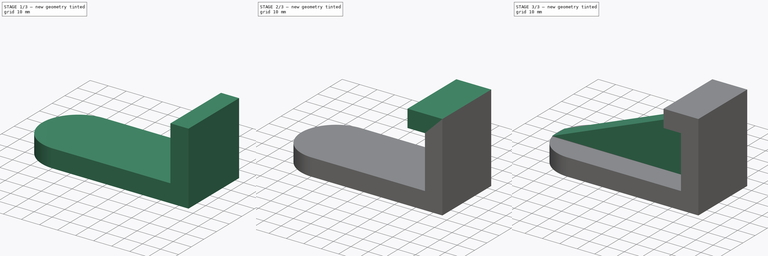
[diagram: build sequence overview — one tinted view per stage of 3, left to right]
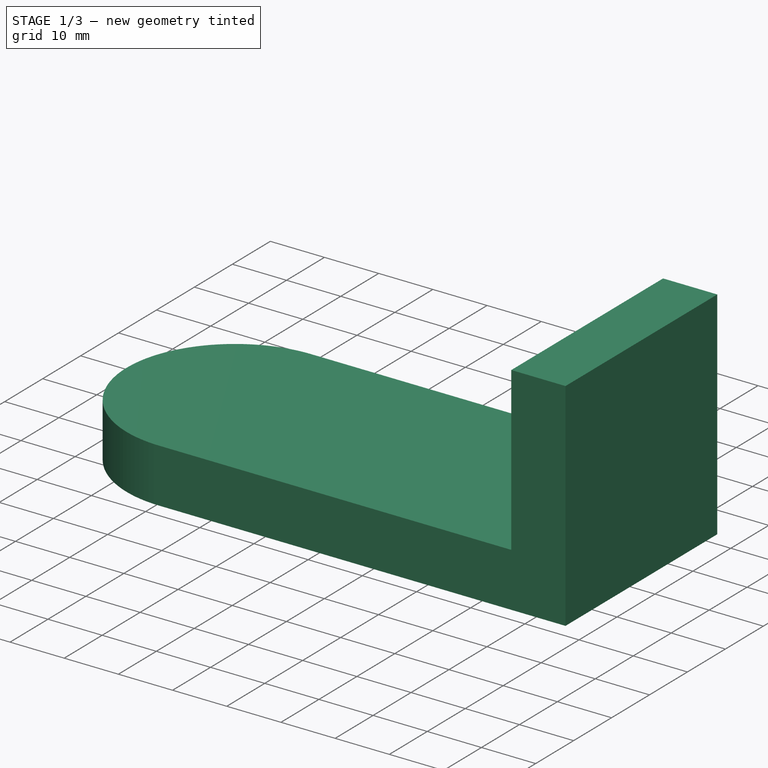
[diagram: stage 1 of 3 — iso view after this stage's code; geometry added in this stage tinted green]
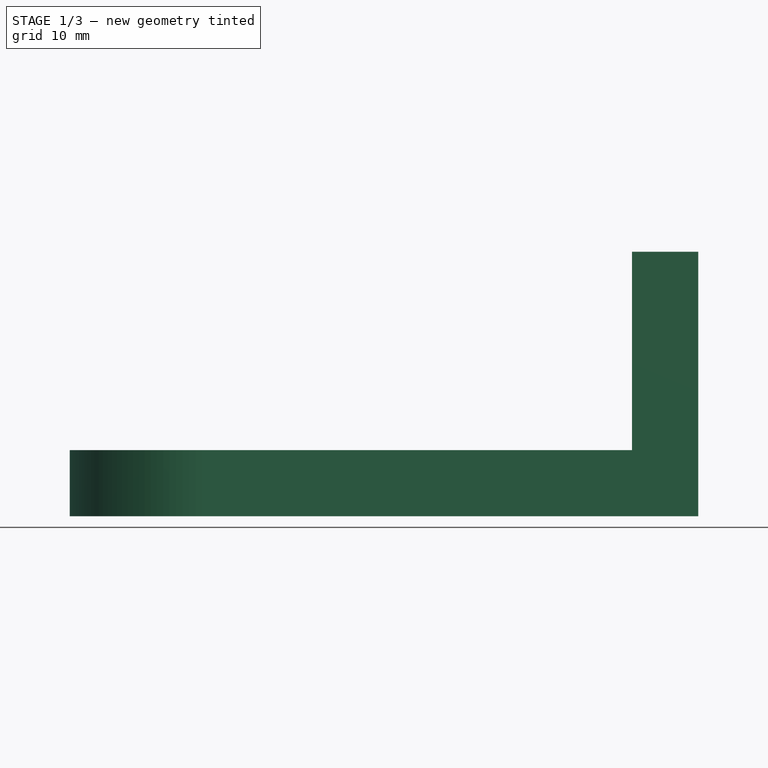
[diagram: stage 1 of 3 — front view after this stage's code; geometry added in this stage tinted green]
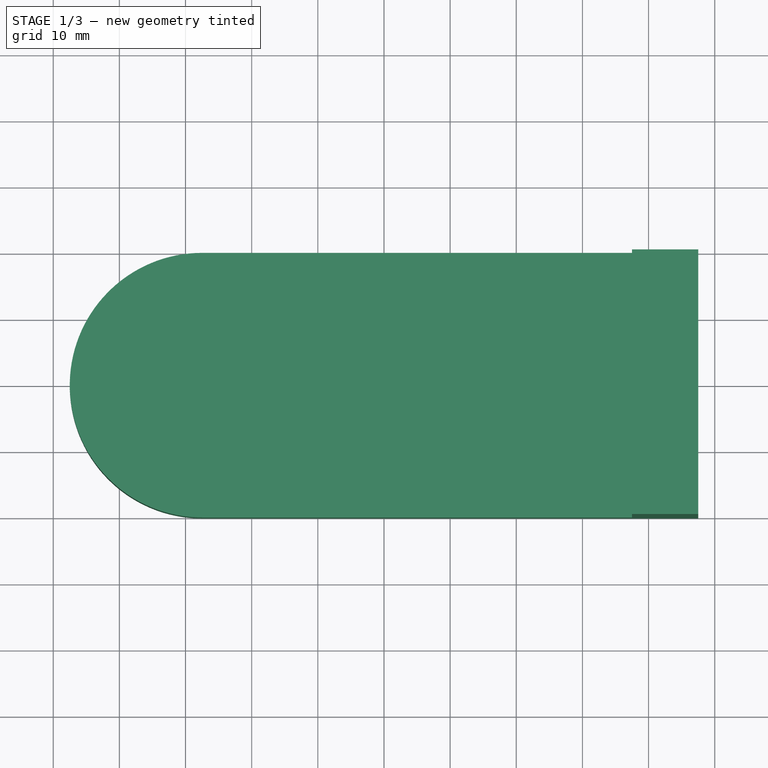
[diagram: stage 1 of 3 — top view after this stage's code; geometry added in this stage tinted green]
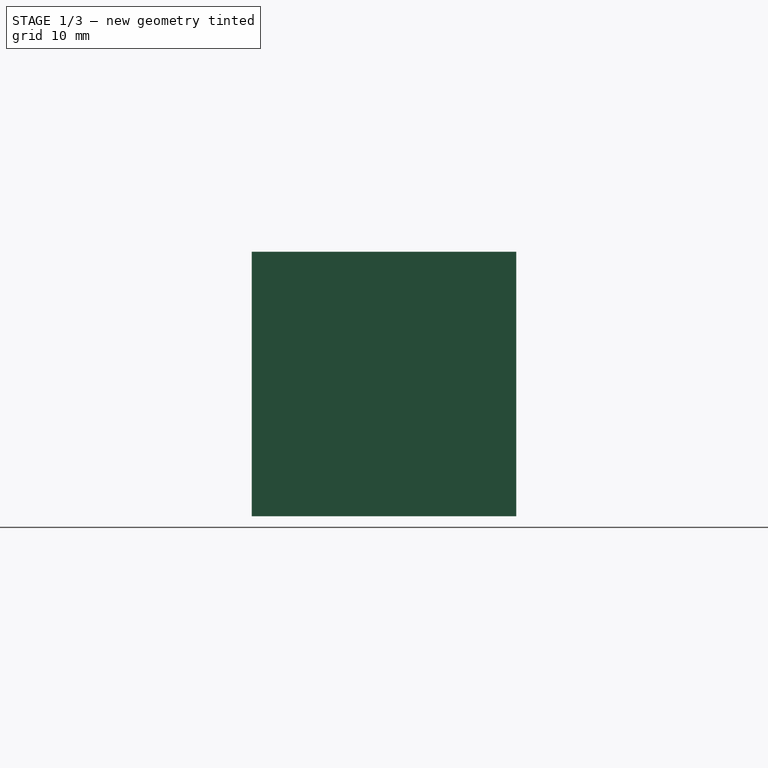
[diagram: stage 1 of 3 — right view after this stage's code; geometry added in this stage tinted green]
FCSTD DOCUMENT  (FreeCAD 1.0R39319 (Git))
Label: Week1Sketch4
License: All rights reserved
LicenseURL: https://en.wikipedia.org/wiki/All_rights_reserved
objects: Sketcher::SketchObject×5, PartDesign::Pad×4, PartDesign::Pocket×1, PartDesign::Body×1
note: 26 computed .brp shape members not serialized (recipe doc carries the construction recipe); baked Part::Feature solids carry a one-line shape summary decoded from their .brp

FEATURE [Sketcher::SketchObject] Sketch
  ArcFitTolerance = 1e-06
  AttachmentSupport = -> [XY_Plane]
  FullyConstrained = true
  MakeInternals = false
  MapMode = 5
  sketch-geometry (5):
    g0: LineSegment StartX=37.5 StartY=-20 StartZ=0 EndX=37.5 EndY=20 EndZ=0
    g1: LineSegment StartX=37.5 StartY=20 StartZ=0 EndX=-37.5 EndY=20 EndZ=0
    g2: LineSegment StartX=-37.5 StartY=-20 StartZ=0 EndX=37.5 EndY=-20 EndZ=0
    g3: GeomPoint [constr] X=0 Y=0 Z=0
    g4: ArcOfCircle CenterX=-37.5 CenterY=0 CenterZ=0 NormalX=0 NormalY=0 NormalZ=1 AngleXU=0 Radius=20 StartAngle=1.5708 EndAngle=4.71239
  constraints (13):
    c: Coincident(g0,g1)
    c: Coincident(g2,g0)
    c: Vertical(g0)
    c: Horizontal(g1)
    c: Horizontal(g2)
    c: Symmetric(g1,g0,g3)
    c: Coincident(g3,g-1)
    c: DistanceX(g1,g1) = 75
    c: Equal(g1,g2)
    c: PointOnObject(g4,g-1)
    c: Diameter(g4) = 40
    c: Coincident(g4,g2)
    c: Coincident(g4,g1)
FEATURE [PartDesign::Pad] Pad
  Direction = (0,0,1)
  Length = 10
  Length2 = 10
  Profile = -> Sketch
  ReferenceAxis = -> Sketch [N_Axis]
  Refine = true
  Suppressed = false
  Type = 0
FEATURE [Sketcher::SketchObject] Sketch001
  ArcFitTolerance = 1e-06
  AttachmentSupport = -> [Pad]
  ExternalGeometry = -> [Pad]
  FullyConstrained = true
  MakeInternals = false
  MapMode = 5
  Placement = pos=(0,0,10) rot=(0,0,1;0rad)
  sketch-geometry (4):
    g0: LineSegment StartX=37.5 StartY=20 StartZ=0 EndX=37.5 EndY=-20 EndZ=0
    g1: LineSegment StartX=37.5 StartY=-20 StartZ=0 EndX=27.5 EndY=-20 EndZ=0
    g2: LineSegment StartX=27.5 StartY=-20 StartZ=0 EndX=27.5 EndY=20 EndZ=0
    g3: LineSegment StartX=37.5 StartY=20 StartZ=0 EndX=27.5 EndY=20 EndZ=0
  constraints (10):
    c: Coincident(g0,g-4)
    c: Coincident(g0,g-5)
    c: Distance(g1) = 10
    c: Coincident(g1,g0)
    c: PointOnObject(g1,g-5)
    c: Coincident(g2,g1)
    c: PointOnObject(g2,g-4)
    c: Vertical(g2)
    c: Coincident(g3,g0)
    c: Coincident(g3,g2)
FEATURE [PartDesign::Pad] Pad001
  BaseFeature = -> Pad
  Direction = (0,0,1)
  Length = 30
  Length2 = 10
  Profile = -> Sketch001
  ReferenceAxis = -> Sketch001 [N_Axis]
  Refine = true
  Suppressed = false
  Type = 0
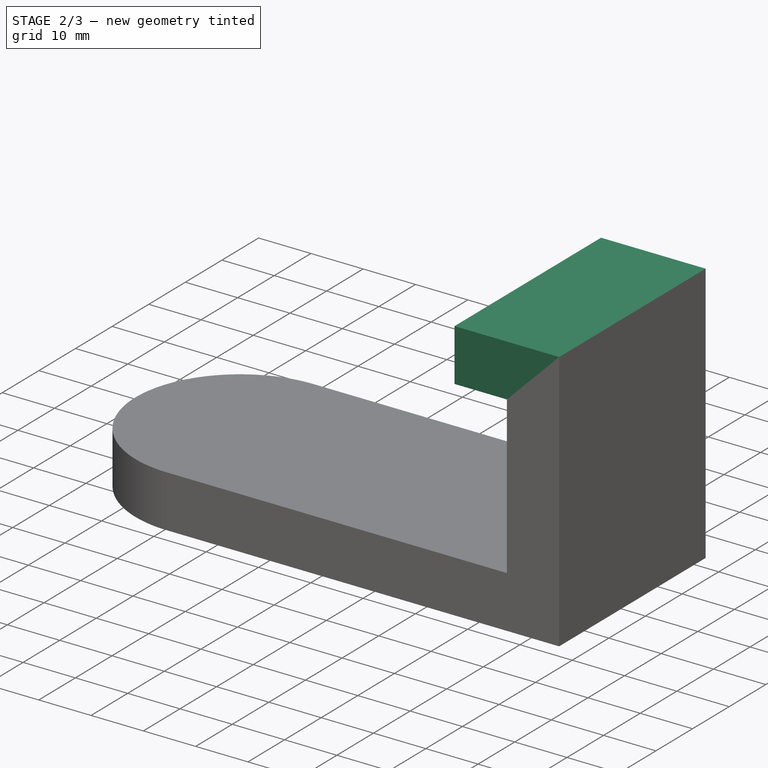
[diagram: stage 2 of 3 — iso view after this stage's code; geometry added in this stage tinted green]
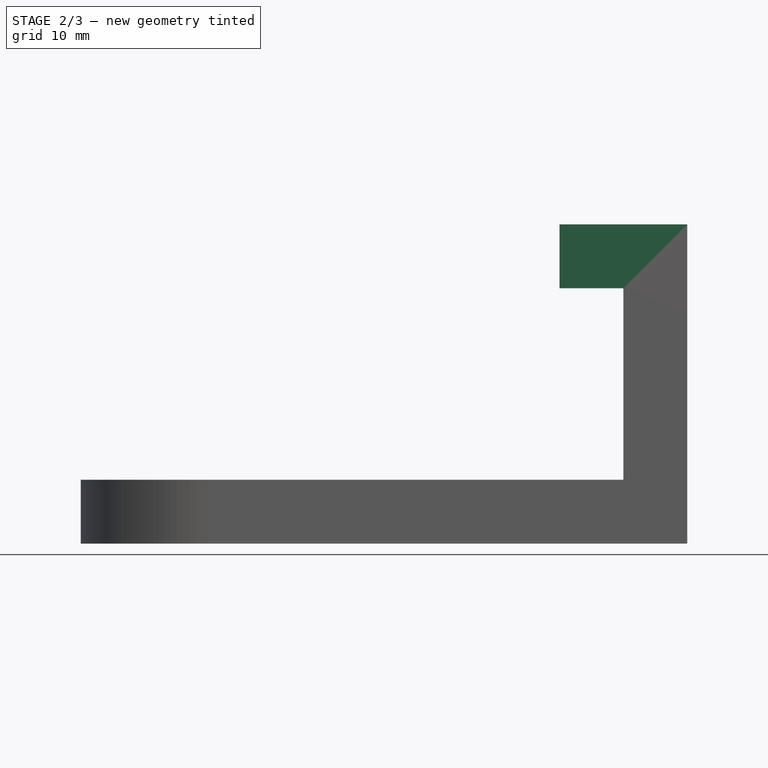
[diagram: stage 2 of 3 — front view after this stage's code; geometry added in this stage tinted green]
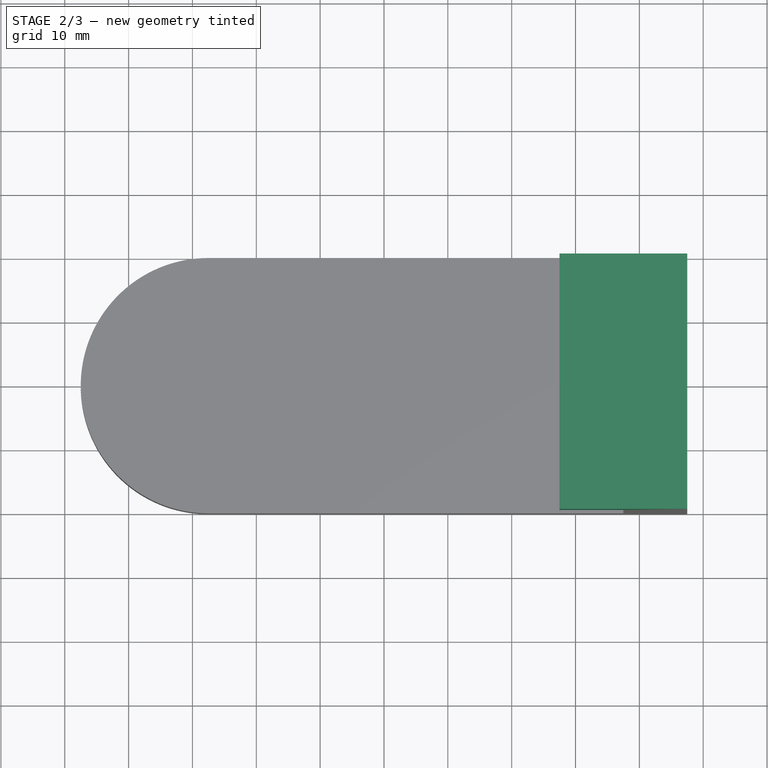
[diagram: stage 2 of 3 — top view after this stage's code; geometry added in this stage tinted green]
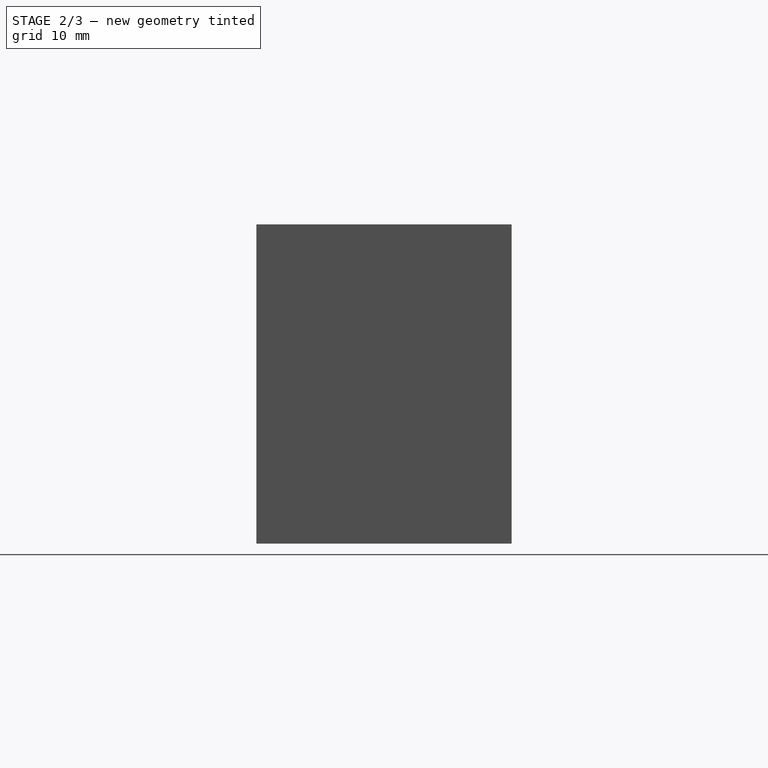
[diagram: stage 2 of 3 — right view after this stage's code; geometry added in this stage tinted green]
FEATURE [Sketcher::SketchObject] Sketch002
  ArcFitTolerance = 1e-06
  AttachmentSupport = -> [Pad001]
  ExternalGeometry = -> [Pad001]
  FullyConstrained = true
  MakeInternals = false
  MapMode = 5
  Placement = pos=(0,0,40) rot=(0,0,1;0rad)
  sketch-geometry (4):
    g0: LineSegment StartX=37.5 StartY=20 StartZ=0 EndX=17.5 EndY=20 EndZ=0
    g1: LineSegment StartX=37.5 StartY=20 StartZ=0 EndX=37.5 EndY=-20 EndZ=0
    g2: LineSegment StartX=37.5 StartY=-20 StartZ=0 EndX=17.5 EndY=-20 EndZ=0
    g3: LineSegment StartX=17.5 StartY=-20 StartZ=0 EndX=17.5 EndY=20 EndZ=0
  constraints (10):
    c: Distance(g0) = 20
    c: Coincident(g0,g-4)
    c: Horizontal(g0)
    c: Coincident(g1,g0)
    c: Coincident(g1,g-5)
    c: Distance(g2) = 20
    c: Coincident(g2,g1)
    c: Horizontal(g2)
    c: Coincident(g3,g2)
    c: Coincident(g3,g0)
FEATURE [PartDesign::Pad] Pad002
  BaseFeature = -> Pad001
  Direction = (0,0,1)
  Length = 10
  Length2 = 10
  Profile = -> Sketch002
  ReferenceAxis = -> Sketch002 [N_Axis]
  Refine = true
  Suppressed = false
  Type = 0
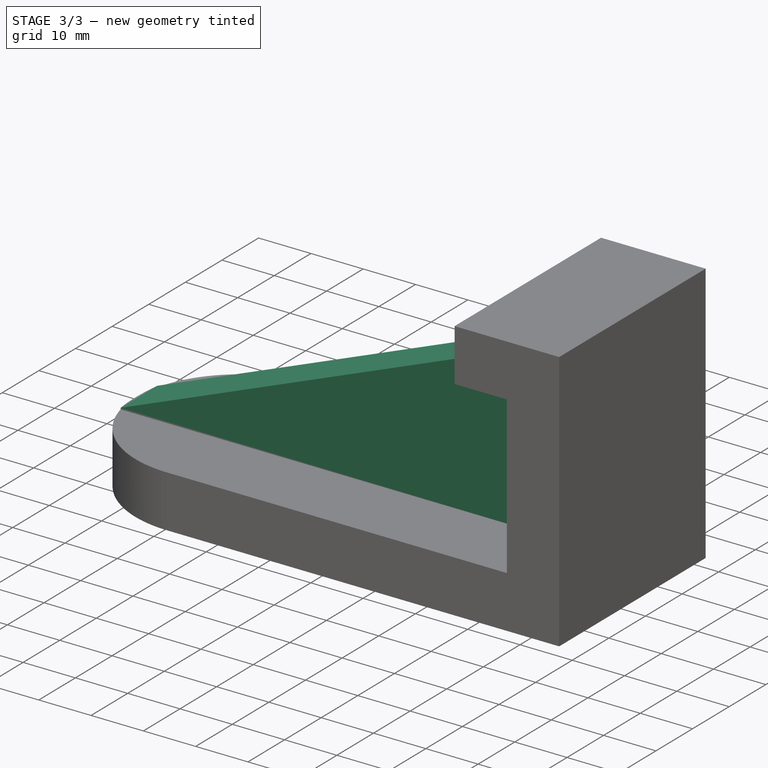
[diagram: stage 3 of 3 — iso view after this stage's code; geometry added in this stage tinted green]
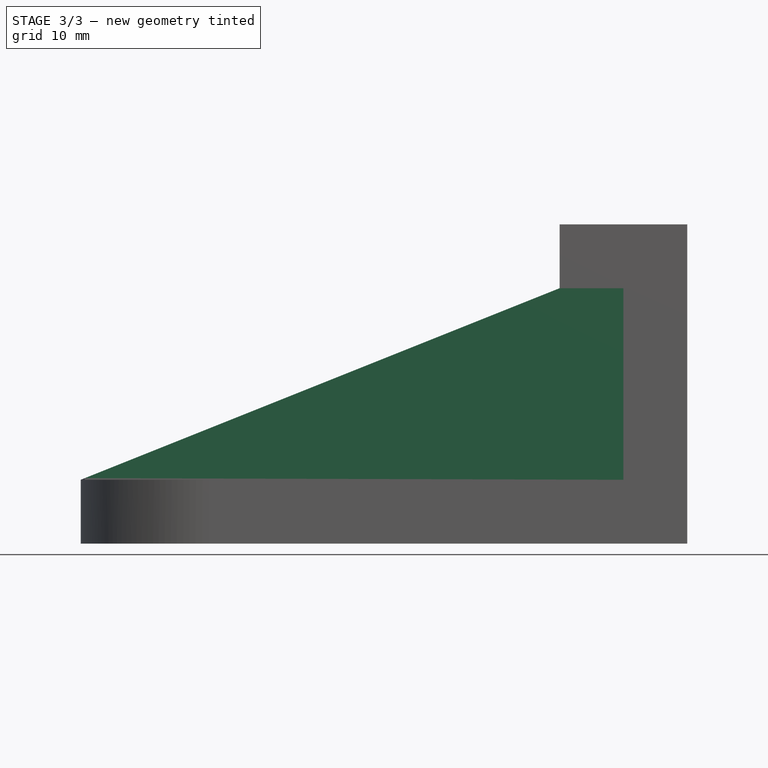
[diagram: stage 3 of 3 — front view after this stage's code; geometry added in this stage tinted green]
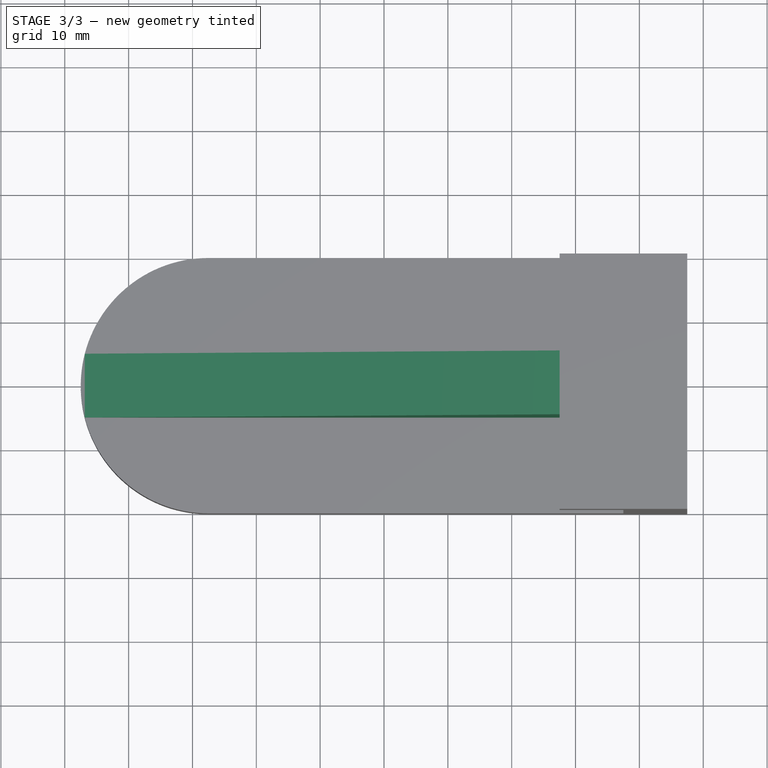
[diagram: stage 3 of 3 — top view after this stage's code; geometry added in this stage tinted green]
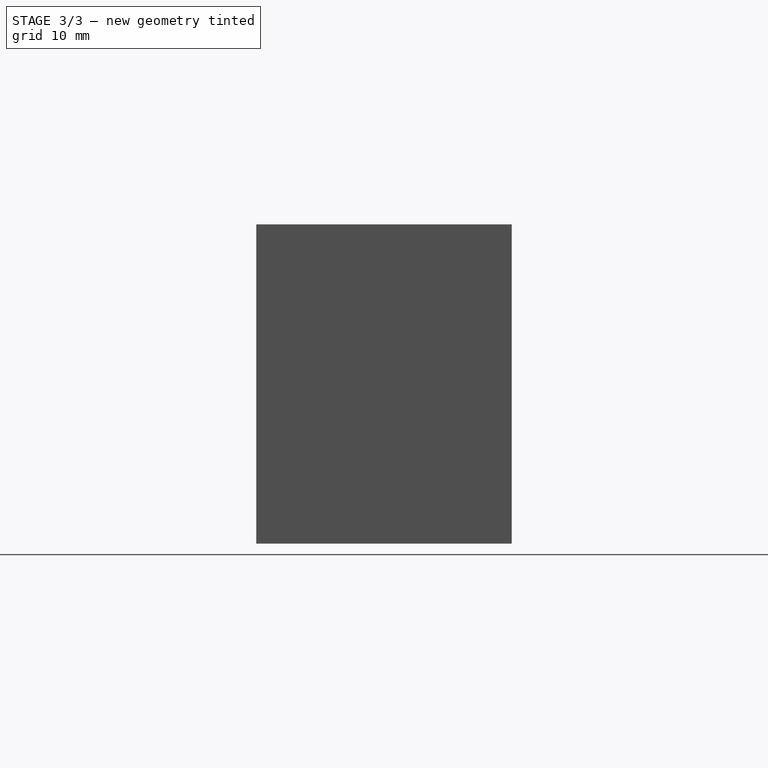
[diagram: stage 3 of 3 — right view after this stage's code; geometry added in this stage tinted green]
FEATURE [Sketcher::SketchObject] Sketch003
  ArcFitTolerance = 1e-06
  AttachmentSupport = -> [Pad002]
  ExternalGeometry = -> [Pad002]
  FullyConstrained = true
  MakeInternals = false
  MapMode = 5
  Placement = pos=(0,0,10) rot=(0,0,1;0rad)
  sketch-geometry (4):
    g0: LineSegment StartX=-56.8649 StartY=5 StartZ=0 EndX=27.5 EndY=5 EndZ=0
    g1: LineSegment StartX=-56.8649 StartY=-5 StartZ=0 EndX=27.5 EndY=-5 EndZ=0
    g2: ArcOfCircle CenterX=-37.5 CenterY=0 CenterZ=0 NormalX=0 NormalY=0 NormalZ=1 AngleXU=0 Radius=20 StartAngle=2.88891 EndAngle=3.39427
    g3: LineSegment StartX=27.5 StartY=5 StartZ=0 EndX=27.5 EndY=-5 EndZ=0
  constraints (13):
    c: PointOnObject(g0,g-4)
    c: PointOnObject(g0,g-3)
    c: Horizontal(g0)
    c: Horizontal(g1)
    c: Distance(g0,g1) = 10
    c: Equal(g1,g0)
    c: Coincident(g2,g0)
    c: Coincident(g2,g1)
    c: Coincident(g-4,g2)
    c: Distance(g-1,g1) = 5
    c: PointOnObject(g3,g0)
    c: Coincident(g3,g1)
    c: Vertical(g3)
FEATURE [PartDesign::Pad] Pad003
  BaseFeature = -> Pad002
  Direction = (0,0,1)
  Length = 30
  Length2 = 10
  Profile = -> Sketch003
  ReferenceAxis = -> Sketch003 [N_Axis]
  Refine = true
  Suppressed = false
  Type = 0
FEATURE [Sketcher::SketchObject] Sketch004
  ArcFitTolerance = 1e-06
  AttachmentSupport = -> [Pad003]
  ExternalGeometry = -> [Pad003]
  FullyConstrained = false
  MakeInternals = false
  MapMode = 5
  Placement = pos=(0,-5,0) rot=(1,0,0;1.5708rad)
  sketch-geometry (4):
    g0: LineSegment StartX=-57.5 StartY=10 StartZ=0 EndX=17.5 EndY=40 EndZ=0
    g1: LineSegment StartX=17.5 StartY=40 StartZ=0 EndX=-57.5 EndY=40 EndZ=0
    g2: LineSegment StartX=-57.5 StartY=10 StartZ=0 EndX=-57.5 EndY=40 EndZ=0
    g3: LineSegment [constr] StartX=-56.8585 StartY=10 StartZ=0 EndX=-57.5342 EndY=10 EndZ=0
  constraints (9):
    c: Coincident(g1,g0)
    c: Coincident(g1,g-4)
    c: Coincident(g2,g0)
    c: Coincident(g2,g1)
    c: Vertical(g2)
    c: PointOnObject(g3,g-5)
    c: Horizontal(g3)
    c: PointOnObject(g0,g3)
    c: Coincident(g0,g-6)
FEATURE [PartDesign::Pocket] Pocket
  BaseFeature = -> Pad003
  Direction = (0,1,-2e-16)
  Length = 10
  Length2 = 5
  Profile = -> Sketch004
  ReferenceAxis = -> Sketch004 [N_Axis]
  Refine = true
  Suppressed = false
  Type = 0
FEATURE [PartDesign::Body] Body
  AllowCompound = false
  Group = -> [Sketch,Pad,Sketch001,Pad001,Sketch002,Pad002,Sketch003,Pad003,Sketch004,Pocket]
  Origin = -> Origin
  Tip = -> Pocket
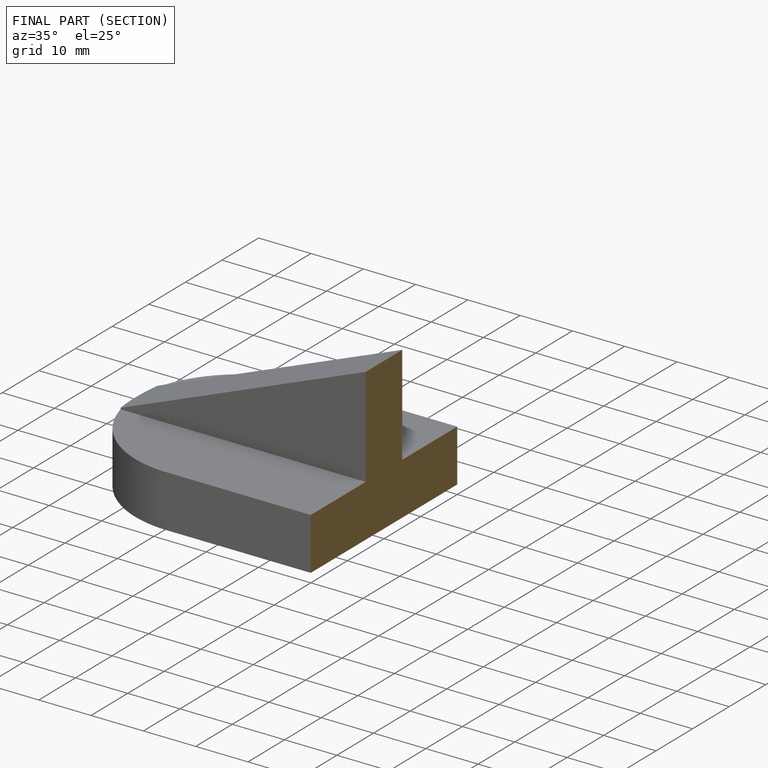
[diagram: finished part — half-section view (interior)]
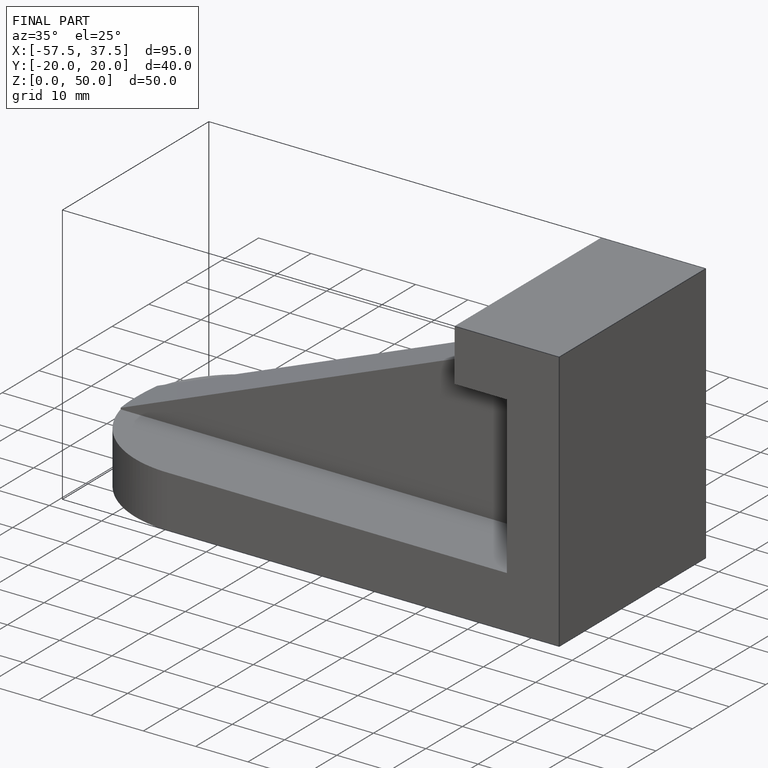
[diagram: finished part — iso view with bounding-box wireframe]
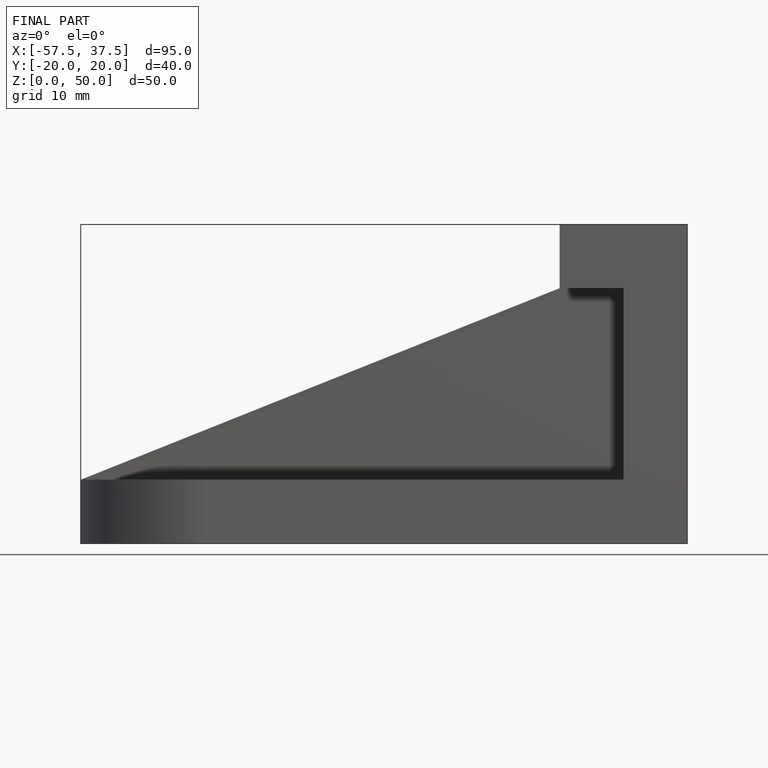
[diagram: finished part — front view with bounding-box wireframe]
